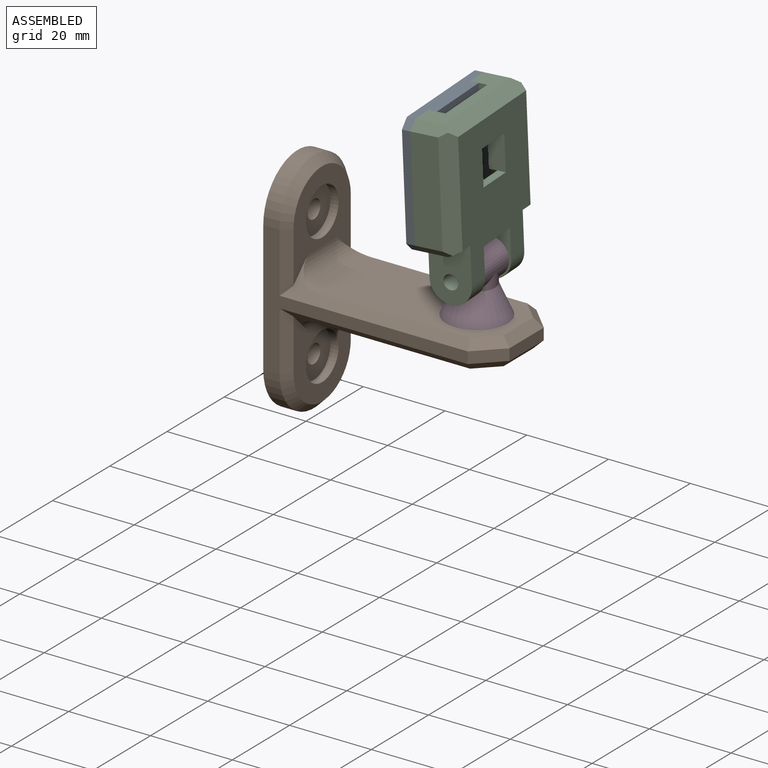
[diagram: assembled view]
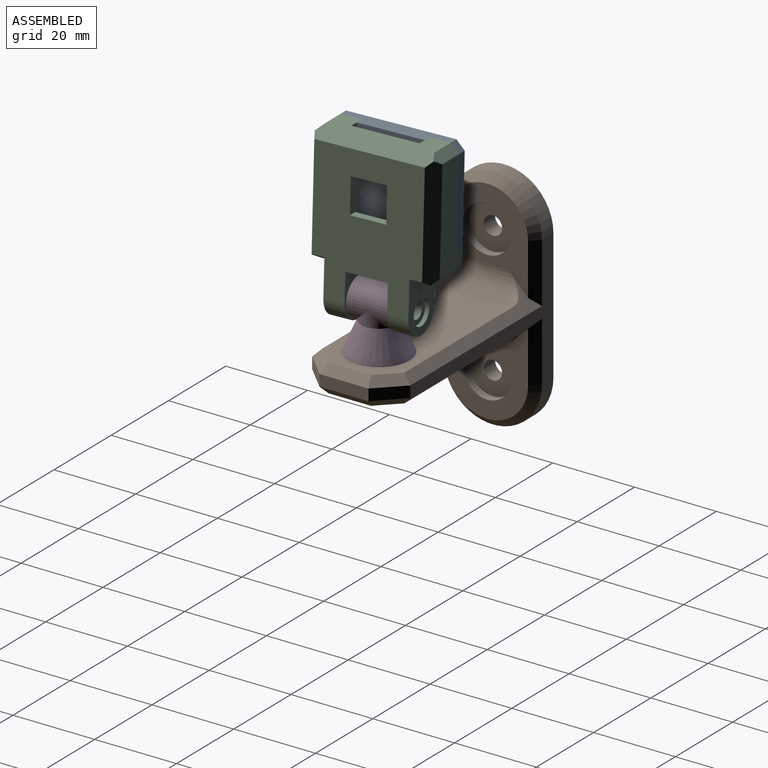
[diagram: assembled view, second angle]
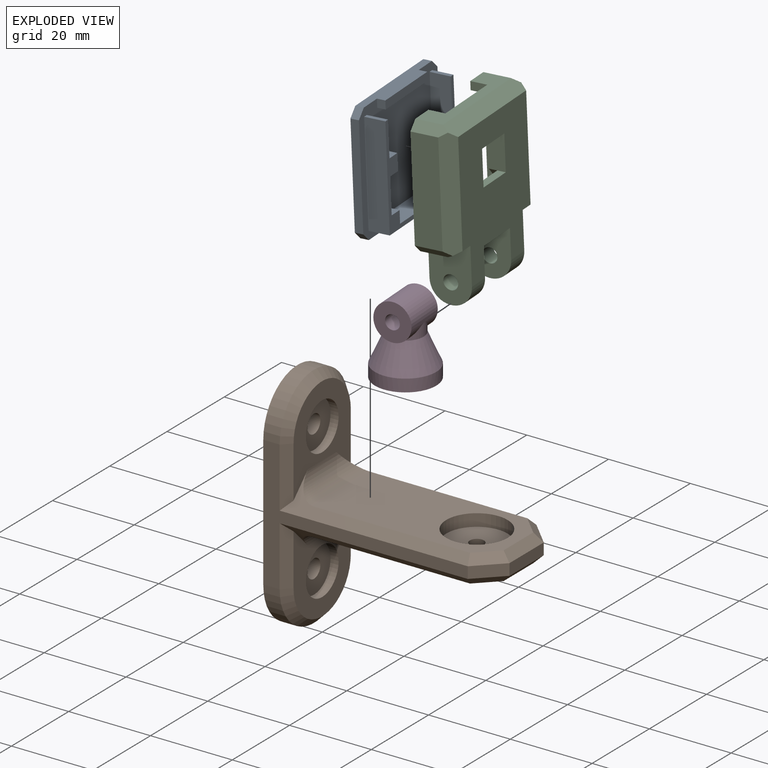
[diagram: exploded view]
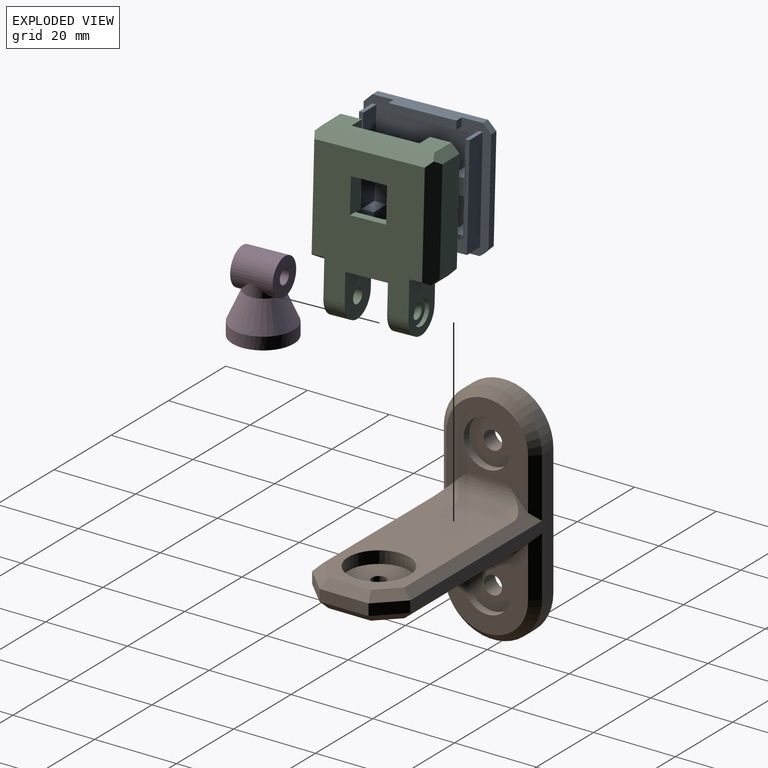
[diagram: exploded view, second angle]
ASSEMBLY  parts=4 mates=3
PART A: 35 faces, bbox 7x30x29 mm
  f0: plane 30x29mm, normal (-1,0,0), area 714mm2, adj f1,f2,f3,f4,f6,f7,f8,f9
  f1: plane 26x4mm, normal (0,0,1), area 84mm2, adj f0,f5,f6,f9,f11,f12,f13
  f2: plane 25x2mm, normal (0,-1,0), area 50mm2, adj f0,f5,f6,f7
  f3: plane 26x2mm, normal (0,0,-1), area 52mm2, adj f0,f5,f7,f8
  f4: plane 25x2mm, normal (0,1,0), area 50mm2, adj f0,f5,f8,f9
  f5: plane 30x29mm, normal (1,0,0), area 862mm2, adj f1,f2,f3,f4,f6,f7,f8,f9
  f6: plane 2x2mm, normal (0,-0.71,0.71), area 5.7mm2, adj f0,f1,f2,f5
  f7: plane 2x2mm, normal (0,-0.71,-0.71), area 5.7mm2, adj f0,f2,f3,f5
  f8: plane 2x2mm, normal (0,0.71,-0.71), area 5.7mm2, adj f0,f3,f4,f5
  f9: plane 2x2mm, normal (0,0.71,0.71), area 5.7mm2, adj f0,f1,f4,f5
  f10: plane 16x2mm, normal (0,0,-1), area 32mm2, adj f0,f11,f12,f13
  f11: plane 2x2mm, normal (0,1,0), area 4mm2, adj f0,f1,f10,f13
  f12: plane 2x2mm, normal (0,-1,0), area 4mm2, adj f0,f1,f10,f13
  f13: plane 16x2mm, normal (-1,0,0), area 32mm2, adj f1,f10,f11,f12
  f14: plane 5x3mm, normal (0,0,-1), area 15mm2, adj f0,f15,f33,f34
  f15: plane 8.5x5mm, normal (0,-1,0), area 42.5mm2, adj f0,f14,f16,f34
  f16: plane 5x3mm, normal (0,0,1), area 15mm2, adj f0,f15,f17,f34
  f17: plane 5x3mm, normal (0,-1,0), area 15mm2, adj f0,f16,f18,f34
  f18: plane 18x5mm, normal (0,0,1), area 90mm2, adj f0,f17,f19,f34
  f19: plane 5x3mm, normal (0,1,0), area 15mm2, adj f0,f18,f20,f34
  f20: plane 5x3mm, normal (0,0,1), area 15mm2, adj f0,f19,f21,f34
  f21: plane 8.5x5mm, normal (0,1,0), area 42.5mm2, adj f0,f20,f22,f34
  f22: plane 5x3mm, normal (0,0,-1), area 15mm2, adj f0,f21,f23,f34
  f23: plane 5x4mm, normal (0,1,0), area 20mm2, adj f0,f22,f24,f34
  f24: plane 5x3mm, normal (0,0,1), area 15mm2, adj f0,f23,f25,f34
  f25: plane 8.5x5mm, normal (0,1,0), area 42.5mm2, adj f0,f24,f26,f34
  f26: plane 5x1mm, normal (0,0,1), area 5mm2, adj f0,f25,f27,f34
  f27: plane 25x5mm, normal (0,-1,0), area 125mm2, adj f0,f26,f28,f34
  f28: plane 26x5mm, normal (0,0,-1), area 130mm2, adj f0,f27,f29,f34
  f29: plane 25x5mm, normal (0,1,0), area 125mm2, adj f0,f28,f30,f34
  f30: plane 5x1mm, normal (0,0,1), area 5mm2, adj f0,f29,f31,f34
  f31: plane 8.5x5mm, normal (0,-1,0), area 42.5mm2, adj f0,f30,f32,f34
  f32: plane 5x3mm, normal (0,0,1), area 15mm2, adj f0,f31,f33,f34
  f33: plane 5x4mm, normal (0,-1,0), area 20mm2, adj f0,f14,f32,f34
  f34: plane 26x25mm, normal (-1,0,0), area 116mm2, adj f14,f15,f16,f17,f18,f19,f20,f21
PART B: 41 faces, bbox 56x24x56 mm
  f0: plane 50x32mm, normal (0,-1,0), area 256.8mm2, adj f11,f12,f13,f22,f23,f28,f35,f38
  f1: plane 12x2.8mm, normal (1,0,0), area 33.6mm2, adj f21,f22,f25,f30
  f2: plane 50x32mm, normal (0,1,0), area 256.8mm2, adj f11,f12,f13,f21,f27,f32,f37,f40
  f3: plane 43x20mm, normal (0,0,1), area 660mm2, adj f5,f28,f29,f30,f31,f32,f33
  f4: plane 43x20mm, normal (0,0,-1), area 803.5mm2, adj f9,f23,f24,f25,f26,f27,f34
  f5: cylinder r=7.5mm len=15mm, axis (0,0,1), area 141.4mm2, adj f3,f6
  f6: plane 15x15mm, normal (0,0,1), area 167.1mm2, adj f5,f7
  f7: cylinder r=1.75mm len=3.5mm, axis (0,0,-1), area 30.8mm2, adj f6,f8
  f8: plane 6.5x6.5mm, normal (0,0,-1), area 23.6mm2, adj f7,f9
  f9: cylinder r=3.25mm len=6.5mm, axis (0,0,-1), area 20.4mm2, adj f4,f8
  f10: plane 22.6x20mm, normal (1,0,0), area 230.2mm2, adj f20,f23,f27,f34,f35,f36,f37
  f11: cylinder r=12mm len=24mm, axis (1,0,0), area 150.8mm2, adj f0,f2,f13,f39
  f12: cylinder r=12mm len=24mm, axis (1,0,0), area 150.8mm2, adj f0,f2,f13,f36
  f13: plane 56x24mm, normal (-1,0,0), area 1188.6mm2, adj f0,f2,f11,f12,f15,f18
  f14: plane 22.6x20mm, normal (1,0,0), area 230.2mm2, adj f17,f28,f32,f33,f38,f39,f40
  f15: cylinder r=2.25mm len=4.5mm, axis (1,0,0), area 56.5mm2, adj f13,f16
  f16: plane 11.5x11.5mm, normal (1,0,0), area 88mm2, adj f15,f17
  f17: cylinder r=5.75mm len=11.5mm, axis (1,0,0), area 72.3mm2, adj f14,f16
  f18: cylinder r=2.25mm len=4.5mm, axis (1,0,0), area 56.5mm2, adj f13,f19
  f19: plane 11.5x11.5mm, normal (1,0,0), area 88mm2, adj f18,f20
  f20: cylinder r=5.75mm len=11.5mm, axis (1,0,0), area 72.3mm2, adj f10,f19
  f21: plane 6x6mm, normal (0.71,0.71,0), area 23.8mm2, adj f1,f2,f26,f31
  f22: plane 6x6mm, normal (0.71,-0.71,0), area 23.8mm2, adj f0,f1,f24,f29
  f23: plane 46x7mm, normal (0,-0.71,-0.71), area 133.7mm2, adj f0,f4,f10,f24,f34,f35
  f24: plane 6.83x6.83mm, normal (0.5,-0.5,-0.71), area 21.7mm2, adj f4,f22,f23,f25
  f25: plane 12x2mm, normal (0.71,0,-0.71), area 31.6mm2, adj f1,f4,f24,f26
  f26: plane 6.83x6.83mm, normal (0.5,0.5,-0.71), area 21.7mm2, adj f4,f21,f25,f27
  f27: plane 46x7mm, normal (0,0.71,-0.71), area 133.7mm2, adj f2,f4,f10,f26,f34,f37
  f28: plane 46x7mm, normal (0,-0.71,0.71), area 133.7mm2, adj f0,f3,f14,f29,f33,f38
  f29: plane 6.83x6.83mm, normal (0.5,-0.5,0.71), area 21.7mm2, adj f3,f22,f28,f30
  f30: plane 12x2mm, normal (0.71,0,0.71), area 31.6mm2, adj f1,f3,f29,f31
  f31: plane 6.83x6.83mm, normal (0.5,0.5,0.71), area 21.7mm2, adj f3,f21,f30,f32
  f32: plane 46x7mm, normal (0,0.71,0.71), area 133.7mm2, adj f2,f3,f14,f31,f33,f40
  f33: cylinder r=5mm len=20mm, axis (0,-1,0), area 128.5mm2, adj f3,f14,f28,f32
  f34: cylinder r=5mm len=20mm, axis (0,1,0), area 128.5mm2, adj f4,f10,f23,f27
  f35: plane 14.6x2mm, normal (0.71,-0.71,0), area 38.5mm2, adj f0,f10,f23,f36
  f36: cone r=12mm half-angle=45deg, axis (-1,0,0), area 97.7mm2, adj f10,f12,f35,f37
  f37: plane 14.6x2mm, normal (0.71,0.71,0), area 38.5mm2, adj f2,f10,f27,f36
  f38: plane 14.6x2mm, normal (0.71,-0.71,0), area 38.5mm2, adj f0,f14,f28,f39
  f39: cone r=12mm half-angle=45deg, axis (-1,0,0), area 97.7mm2, adj f11,f14,f38,f40
  f40: plane 14.6x2mm, normal (0.71,0.71,0), area 38.5mm2, adj f2,f14,f32,f39
PART C: 42 faces, bbox 10x30x41 mm
  f0: plane 36x30mm, normal (1,0,0), area 250mm2, adj f1,f2,f3,f4,f6,f7,f8,f9
  f1: plane 26x6mm, normal (0,0,-1), area 92mm2, adj f0,f25,f26,f29,f30,f31,f32
  f2: plane 14x10mm, normal (0,-1,0), area 84.5mm2, adj f0,f5,f7,f14,f16,f37
  f3: plane 14x10mm, normal (0,1,0), area 103.1mm2, adj f0,f5,f6,f11,f15,f33
  f4: plane 26x8mm, normal (0,0,1), area 208mm2, adj f0,f24,f25,f26,f27,f28
  f5: plane 34x26mm, normal (-1,0,0), area 687.8mm2, adj f2,f3,f6,f7,f8,f9,f10,f19
  f6: cylinder r=5mm len=10mm, axis (0,1,0), area 78.5mm2, adj f0,f3,f5,f10
  f7: cylinder r=5mm len=10mm, axis (0,1,0), area 78.5mm2, adj f0,f2,f5,f9
  f8: plane 10x10mm, normal (0,0,-1), area 100mm2, adj f0,f5,f9,f10
  f9: plane 12x10mm, normal (0,1,0), area 99.6mm2, adj f0,f5,f7,f8,f12
  f10: plane 12x10mm, normal (0,-1,0), area 99.6mm2, adj f0,f5,f6,f8,f11
  f11: cylinder r=1.75mm len=5mm, axis (0,-1,0), area 55mm2, adj f3,f10
  f12: cylinder r=1.75mm len=4mm, axis (0,-1,0), area 44mm2, adj f9,f13
  f13: plane 6x6mm, normal (0,-1,0), area 18.7mm2, adj f12,f14
  f14: cylinder r=3mm len=6mm, axis (0,-1,0), area 18.8mm2, adj f2,f13
  f15: plane 6.54x3mm, normal (0,0,-1), area 19.6mm2, adj f0,f3,f33,f38
  f16: plane 6.54x3mm, normal (0,0,-1), area 19.6mm2, adj f0,f2,f37,f40
  f17: plane 25x6.54mm, normal (0,-1,0), area 163.4mm2, adj f0,f36,f40,f41
  f18: plane 26x6.54mm, normal (0,0,1), area 105.9mm2, adj f0,f30,f31,f32,f35,f39,f41
  f19: plane 8.5x2mm, normal (0,0,1), area 17mm2, adj f5,f20,f22,f24
  f20: plane 8.5x4mm, normal (0,-1,0), area 34mm2, adj f5,f19,f21,f27,f29
  f21: plane 8.5x4mm, normal (0,0,-1), area 34mm2, adj f5,f20,f22,f29
  f22: plane 8.5x4mm, normal (0,1,0), area 34mm2, adj f5,f19,f21,f28,f29
  f23: plane 25x6.54mm, normal (0,1,0), area 163.4mm2, adj f0,f34,f38,f39
  f24: plane 26x10.5mm, normal (1,0,0), area 181.1mm2, adj f4,f19,f27,f28
  f25: plane 25x6mm, normal (0,1,0), area 150mm2, adj f0,f1,f4,f29
  f26: plane 25x6mm, normal (0,-1,0), area 150mm2, adj f0,f1,f4,f29
  f27: plane 10.5x8.75mm, normal (0,-0.77,-0.64), area 27.3mm2, adj f4,f20,f24,f29
  f28: plane 10.5x8.75mm, normal (0,0.77,-0.64), area 27.3mm2, adj f4,f22,f24,f29
  f29: plane 26x25mm, normal (1,0,0), area 396.6mm2, adj f1,f20,f21,f22,f25,f26,f27,f28
  f30: plane 4x2mm, normal (0,-1,0), area 8mm2, adj f0,f1,f18,f32
  f31: plane 4x2mm, normal (0,1,0), area 8mm2, adj f0,f1,f18,f32
  f32: plane 16x2mm, normal (1,0,0), area 32mm2, adj f1,f18,f30,f31
  f33: plane 4x3.46mm, normal (-0.5,0,-0.87), area 14mm2, adj f3,f5,f15,f34,f38
  f34: plane 27x3.46mm, normal (-0.5,0.87,0), area 104mm2, adj f5,f23,f33,f35,f38,f39
  f35: plane 28x3.46mm, normal (-0.5,0,0.87), area 108mm2, adj f5,f18,f34,f36,f39,f41
  f36: plane 27x3.46mm, normal (-0.5,-0.87,0), area 104mm2, adj f5,f17,f35,f37,f40,f41
  f37: plane 4x3.46mm, normal (-0.5,0,-0.87), area 14mm2, adj f2,f5,f16,f36,f40
  f38: plane 8.27x2mm, normal (0,0.71,-0.71), area 20.9mm2, adj f0,f15,f23,f33,f34
  f39: plane 8.27x2mm, normal (0,0.71,0.71), area 20.9mm2, adj f0,f18,f23,f34,f35
  f40: plane 8.27x2mm, normal (0,-0.71,-0.71), area 20.9mm2, adj f0,f16,f17,f36,f37
  f41: plane 8.27x2mm, normal (0,-0.71,0.71), area 20.9mm2, adj f0,f17,f18,f35,f36
PART D: 11 faces, bbox 15x15x18.5 mm
  f0: cylinder r=1.75mm len=10mm, axis (0,-1,0), area 104.6mm2, adj f7,f8,f9,f10
  f1: cone r=4.4mm half-angle=24deg, axis (0,0,-1), area 281.8mm2, adj f2,f3,f5,f6
  f2: cylinder r=4.4mm len=7.77mm, axis (0,0,-1), area 15mm2, adj f1,f6
  f3: cylinder r=4.4mm len=7.77mm, axis (0,0,-1), area 15mm2, adj f1,f6
  f4: plane 15x15mm, normal (0,0,-1), area 171.8mm2, adj f5,f10
  f5: cylinder r=7.5mm len=15mm, axis (0,0,1), area 143.1mm2, adj f1,f4
  f6: cylinder r=4.5mm len=10mm, axis (0,1,0), area 206.6mm2, adj f1,f2,f3,f7,f8
  f7: plane 9x9mm, normal (0,-1,0), area 54mm2, adj f0,f6
  f8: plane 9x9mm, normal (0,1,0), area 54mm2, adj f0,f6
  f9: cone r=0mm half-angle=59deg, axis (0,0,-1), area 0mm2, adj f0
  f10: cylinder r=1.25mm len=12.78mm, axis (0,0,-1), area 98.2mm2, adj f0,f4
PLACE A rot(axis=(0.02,0,-1),176.6deg) t=(76.21,2.27,1.58)mm
PLACE B at identity fixed
PLACE C rot(axis=(0.02,0,-1),176.6deg) t=(76.21,2.27,1.58)mm
PLACE D rot(axis=(0,0,-1),176.6deg) t=(75.58,2.23,0)mm
MATE revolute D.f0 <-> C.f6  axis (-0.06,1,0) through (37.53,4.99,16)mm
MATE fastened C.f0 <-> A.f0  axis (-1,-0.06,-0.04) through (33.23,-13.29,24.79)mm
MATE revolute D.f1 <-> B.f5  axis (0,0,-1) through (37.82,0,2)mm
